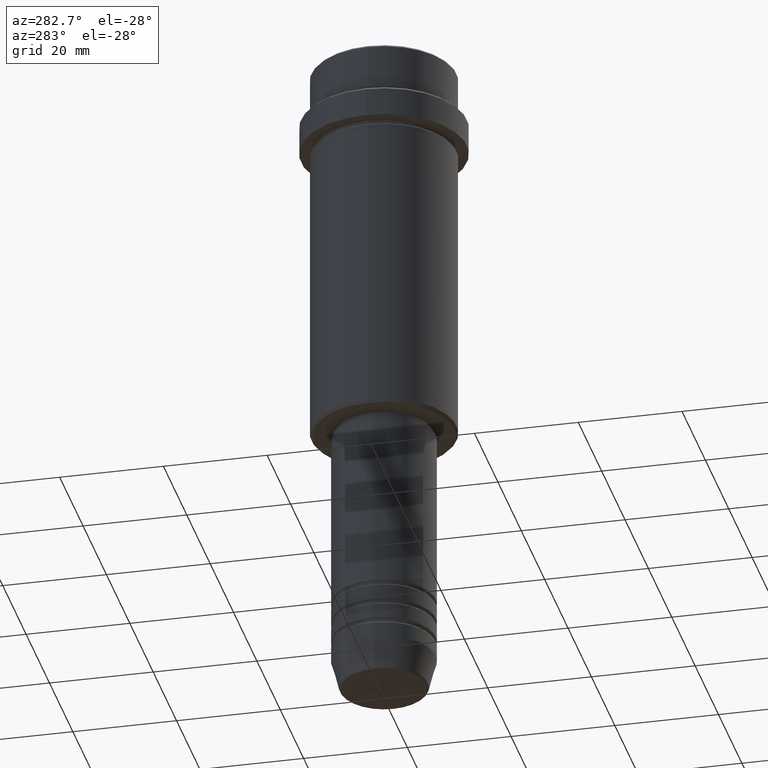
[diagram: clean part render]
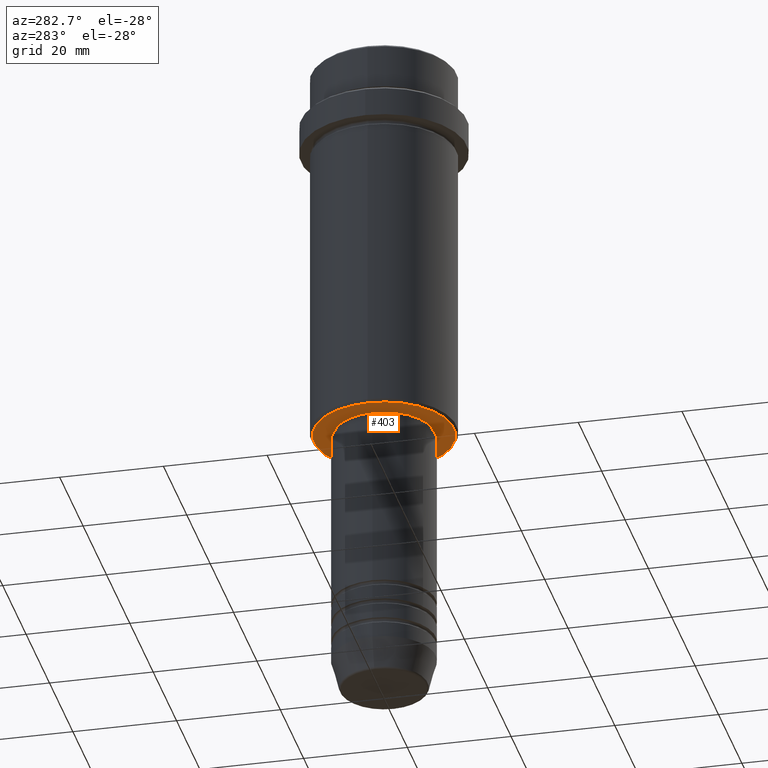
[diagram: same view with one face highlighted and labeled with its STEP entity id]
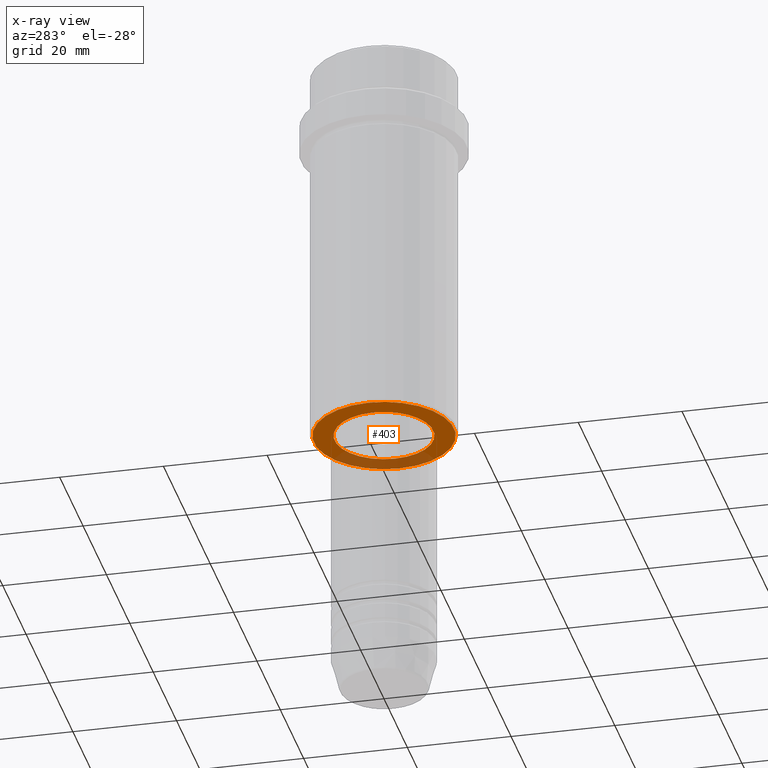
[diagram: x-ray of the same camera — body ghosted, the highlighted face saturated]
A machine part, auxiliary view. The second image highlights one B-rep face of the part: STEP entity #403.
The next image is the same camera in x-ray: the body ghosted, the highlighted face saturated — about 26% of this face is hidden behind the body in this view.
In plain terms, the highlighted planar face has unit normal (0, 0, -1).
Its self-contained STEP definition (entity closure, byte-faithful):
#40 = CARTESIAN_POINT ( 'NONE',  ( 0.000000000000000000, 14.00000000000000000, -76.00000000000000000 ) ) ;
#60 = AXIS2_PLACEMENT_3D ( 'NONE', #564, #994, #134 ) ;
#79 = CIRCLE ( 'NONE', #1340, 9.499999999999996447 ) ;
#134 = DIRECTION ( 'NONE',  ( 1.000000000000000000, 0.000000000000000000, 0.000000000000000000 ) ) ;
#141 = CARTESIAN_POINT ( 'NONE',  ( 0.000000000000000000, 0.000000000000000000, -76.00000000000000000 ) ) ;
#167 = FACE_OUTER_BOUND ( 'NONE', #487, .T. ) ;
#168 = ORIENTED_EDGE ( 'NONE', *, *, #1026, .T. ) ;
#186 = EDGE_CURVE ( 'NONE', #792, #1072, #740, .T. ) ;
#237 = ORIENTED_EDGE ( 'NONE', *, *, #860, .T. ) ;
#303 = DIRECTION ( 'NONE',  ( -0.000000000000000000, -0.000000000000000000, 1.000000000000000000 ) ) ;
#403 = ADVANCED_FACE ( 'NONE', ( #167, #1250 ), #734, .T. ) ;
#441 = CARTESIAN_POINT ( 'NONE',  ( 0.000000000000000000, 0.000000000000000000, -76.00000000000000000 ) ) ;
#487 = EDGE_LOOP ( 'NONE', ( #237, #1410 ) ) ;
#564 = CARTESIAN_POINT ( 'NONE',  ( 0.000000000000000000, 0.000000000000000000, -76.00000000000000000 ) ) ;
#590 = DIRECTION ( 'NONE',  ( -1.000000000000000000, 0.000000000000000000, 0.000000000000000000 ) ) ;
#652 = DIRECTION ( 'NONE',  ( -1.000000000000000000, 0.000000000000000000, 0.000000000000000000 ) ) ;
#667 = AXIS2_PLACEMENT_3D ( 'NONE', #141, #888, #590 ) ;
#734 = PLANE ( 'NONE',  #982 ) ;
#740 = CIRCLE ( 'NONE', #667, 13.49999999999996980 ) ;
#764 = CARTESIAN_POINT ( 'NONE',  ( -13.49999999999996980, 1.683889348827608484E-15, -76.00000000000000000 ) ) ;
#792 = VERTEX_POINT ( 'NONE', #764 ) ;
#859 = CARTESIAN_POINT ( 'NONE',  ( 0.000000000000000000, 0.000000000000000000, -76.00000000000000000 ) ) ;
#860 = EDGE_CURVE ( 'NONE', #1072, #792, #1156, .T. ) ;
#870 = VERTEX_POINT ( 'NONE', #881 ) ;
#881 = CARTESIAN_POINT ( 'NONE',  ( 9.499999999999996447, 0.000000000000000000, -76.00000000000000000 ) ) ;
#888 = DIRECTION ( 'NONE',  ( 0.000000000000000000, 0.000000000000000000, -1.000000000000000000 ) ) ;
#927 = DIRECTION ( 'NONE',  ( 0.000000000000000000, 0.000000000000000000, -1.000000000000000000 ) ) ;
#982 = AXIS2_PLACEMENT_3D ( 'NONE', #40, #927, #1031 ) ;
#985 = ORIENTED_EDGE ( 'NONE', *, *, #1290, .T. ) ;
#994 = DIRECTION ( 'NONE',  ( -0.000000000000000000, -0.000000000000000000, 1.000000000000000000 ) ) ;
#1026 = EDGE_CURVE ( 'NONE', #1351, #870, #79, .T. ) ;
#1031 = DIRECTION ( 'NONE',  ( -1.000000000000000000, 0.000000000000000000, -0.000000000000000000 ) ) ;
#1072 = VERTEX_POINT ( 'NONE', #1188 ) ;
#1091 = CIRCLE ( 'NONE', #60, 9.499999999999996447 ) ;
#1131 = EDGE_LOOP ( 'NONE', ( #985, #168 ) ) ;
#1148 = DIRECTION ( 'NONE',  ( 1.000000000000000000, 0.000000000000000000, 0.000000000000000000 ) ) ;
#1156 = CIRCLE ( 'NONE', #1407, 13.49999999999996980 ) ;
#1188 = CARTESIAN_POINT ( 'NONE',  ( 13.49999999999996980, 0.000000000000000000, -76.00000000000000000 ) ) ;
#1216 = CARTESIAN_POINT ( 'NONE',  ( -9.499999999999996447, 1.163414459189985091E-15, -76.00000000000000000 ) ) ;
#1250 = FACE_BOUND ( 'NONE', #1131, .T. ) ;
#1288 = DIRECTION ( 'NONE',  ( 0.000000000000000000, 0.000000000000000000, -1.000000000000000000 ) ) ;
#1290 = EDGE_CURVE ( 'NONE', #870, #1351, #1091, .T. ) ;
#1340 = AXIS2_PLACEMENT_3D ( 'NONE', #859, #303, #1148 ) ;
#1351 = VERTEX_POINT ( 'NONE', #1216 ) ;
#1407 = AXIS2_PLACEMENT_3D ( 'NONE', #441, #1288, #652 ) ;
#1410 = ORIENTED_EDGE ( 'NONE', *, *, #186, .T. ) ;